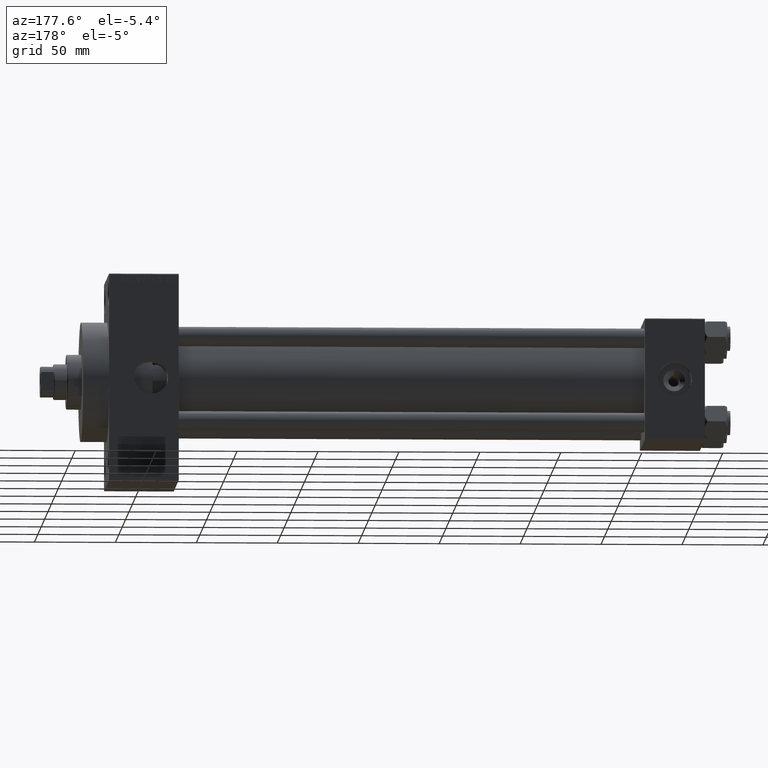
[diagram: clean part render]
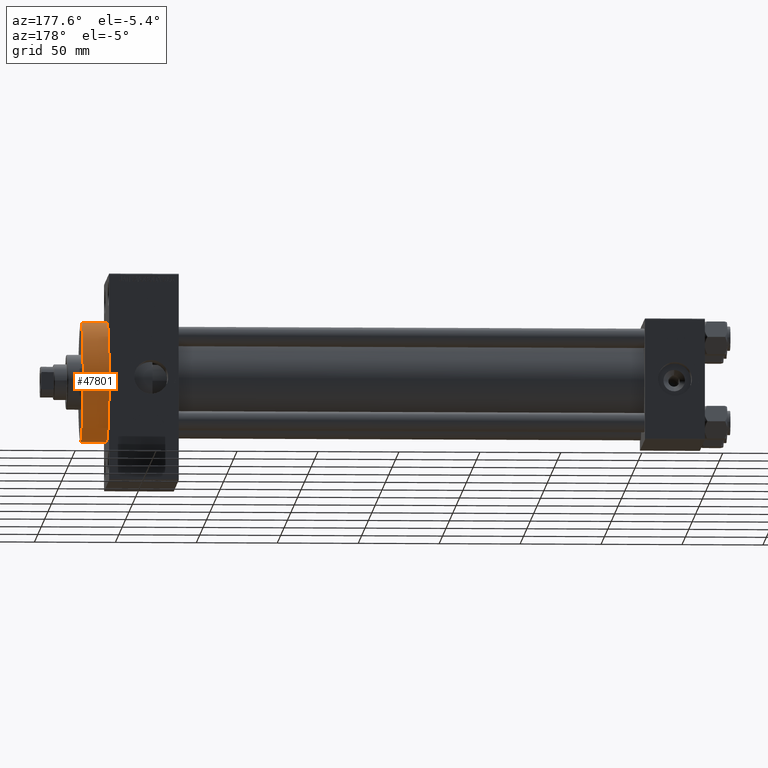
[diagram: same view with one face highlighted and labeled with its STEP entity id]
A machine part, auxiliary view. The second image highlights one B-rep face of the part: STEP entity #47801.
In plain terms, the highlighted cylindrical surface (partial cylindrical patch) has radius 37 mm, axis along (-1, -0, -0).
Its self-contained STEP definition (entity closure, byte-faithful):
#1294 = DIRECTION ( 'NONE',  ( 1.000000000000000000, 0.000000000000000000, 0.000000000000000000 ) ) ;
#1540 = AXIS2_PLACEMENT_3D ( 'NONE', #13873, #44280, #36027 ) ;
#1665 = CYLINDRICAL_SURFACE ( 'NONE', #1540, 37.00000000000000000 ) ;
#4970 = CARTESIAN_POINT ( 'NONE',  ( 367.9999999999999432, 0.000000000000000000, 0.000000000000000000 ) ) ;
#6831 = LINE ( 'NONE', #40455, #36994 ) ;
#7383 = CARTESIAN_POINT ( 'NONE',  ( 367.9999999999999432, 0.000000000000000000, 37.00000000000000000 ) ) ;
#8952 = CARTESIAN_POINT ( 'NONE',  ( 383.9999999999999432, 4.531193156845206793E-15, -37.00000000000000000 ) ) ;
#10882 = CARTESIAN_POINT ( 'NONE',  ( 383.9999999999999432, 0.000000000000000000, 37.00000000000000000 ) ) ;
#13122 = FACE_OUTER_BOUND ( 'NONE', #24290, .T. ) ;
#13873 = CARTESIAN_POINT ( 'NONE',  ( 383.9999999999999432, 0.000000000000000000, 0.000000000000000000 ) ) ;
#17242 = DIRECTION ( 'NONE',  ( 0.000000000000000000, 0.000000000000000000, -1.000000000000000000 ) ) ;
#17887 = VERTEX_POINT ( 'NONE', #7383 ) ;
#21228 = AXIS2_PLACEMENT_3D ( 'NONE', #4970, #28117, #31364 ) ;
#23467 = EDGE_CURVE ( 'NONE', #39840, #17887, #6831, .T. ) ;
#24290 = EDGE_LOOP ( 'NONE', ( #24728, #32986, #47668, #31838 ) ) ;
#24728 = ORIENTED_EDGE ( 'NONE', *, *, #43354, .F. ) ;
#25603 = VERTEX_POINT ( 'NONE', #39595 ) ;
#28117 = DIRECTION ( 'NONE',  ( 1.000000000000000000, 0.000000000000000000, 0.000000000000000000 ) ) ;
#28696 = CARTESIAN_POINT ( 'NONE',  ( 383.9999999999999432, 0.000000000000000000, 0.000000000000000000 ) ) ;
#31364 = DIRECTION ( 'NONE',  ( 0.000000000000000000, 0.000000000000000000, -1.000000000000000000 ) ) ;
#31838 = ORIENTED_EDGE ( 'NONE', *, *, #23467, .F. ) ;
#32986 = ORIENTED_EDGE ( 'NONE', *, *, #35545, .T. ) ;
#33350 = AXIS2_PLACEMENT_3D ( 'NONE', #28696, #1294, #17242 ) ;
#35545 = EDGE_CURVE ( 'NONE', #39019, #25603, #43089, .T. ) ;
#36027 = DIRECTION ( 'NONE',  ( 0.000000000000000000, 0.000000000000000000, 1.000000000000000000 ) ) ;
#36322 = CIRCLE ( 'NONE', #21228, 37.00000000000000000 ) ;
#36994 = VECTOR ( 'NONE', #44476, 1000.000000000000000 ) ;
#37329 = CIRCLE ( 'NONE', #33350, 37.00000000000000000 ) ;
#38616 = EDGE_CURVE ( 'NONE', #25603, #17887, #36322, .T. ) ;
#38861 = VECTOR ( 'NONE', #39085, 1000.000000000000000 ) ;
#39019 = VERTEX_POINT ( 'NONE', #41495 ) ;
#39085 = DIRECTION ( 'NONE',  ( -1.000000000000000000, -0.000000000000000000, -0.000000000000000000 ) ) ;
#39595 = CARTESIAN_POINT ( 'NONE',  ( 367.9999999999999432, 4.531193156845206793E-15, -37.00000000000000000 ) ) ;
#39840 = VERTEX_POINT ( 'NONE', #10882 ) ;
#40455 = CARTESIAN_POINT ( 'NONE',  ( 383.9999999999999432, 0.000000000000000000, 37.00000000000000000 ) ) ;
#41495 = CARTESIAN_POINT ( 'NONE',  ( 383.9999999999999432, 4.531193156845206793E-15, -37.00000000000000000 ) ) ;
#43089 = LINE ( 'NONE', #8952, #38861 ) ;
#43354 = EDGE_CURVE ( 'NONE', #39019, #39840, #37329, .T. ) ;
#44280 = DIRECTION ( 'NONE',  ( -1.000000000000000000, -0.000000000000000000, -0.000000000000000000 ) ) ;
#44476 = DIRECTION ( 'NONE',  ( -1.000000000000000000, -0.000000000000000000, -0.000000000000000000 ) ) ;
#47668 = ORIENTED_EDGE ( 'NONE', *, *, #38616, .T. ) ;
#47801 = ADVANCED_FACE ( 'NONE', ( #13122 ), #1665, .T. ) ;